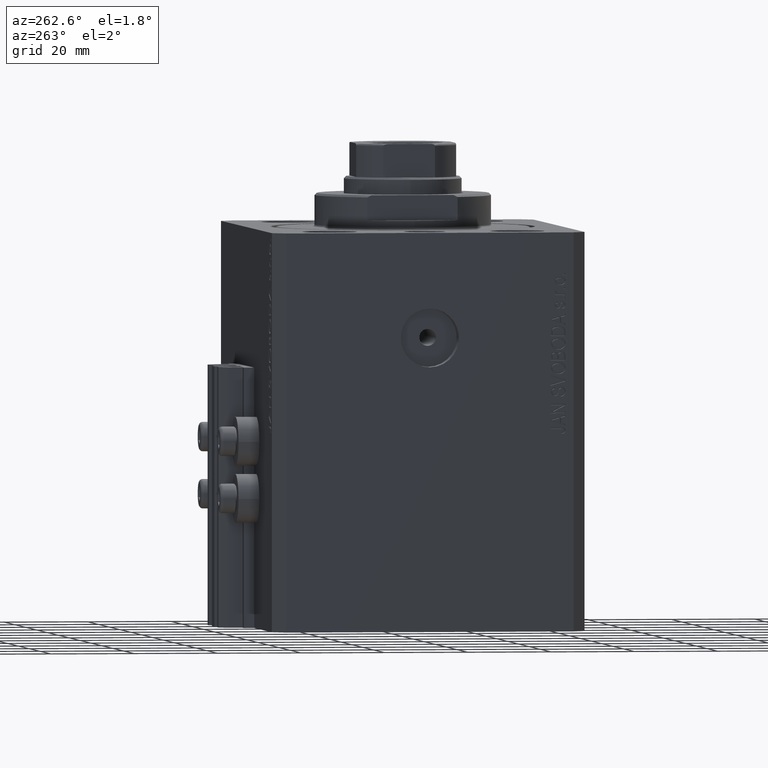
[diagram: clean part render]
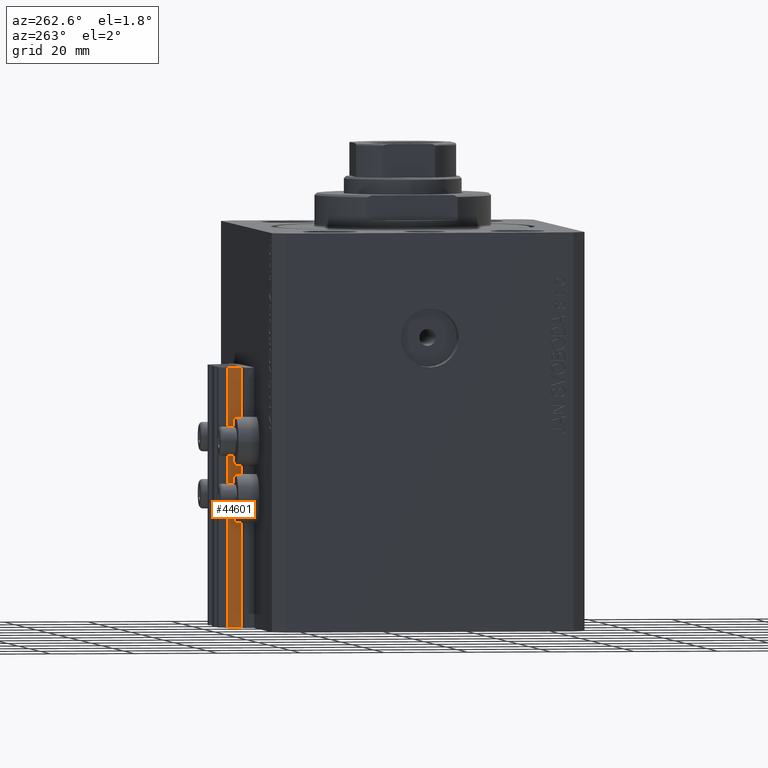
[diagram: same view with one face highlighted and labeled with its STEP entity id]
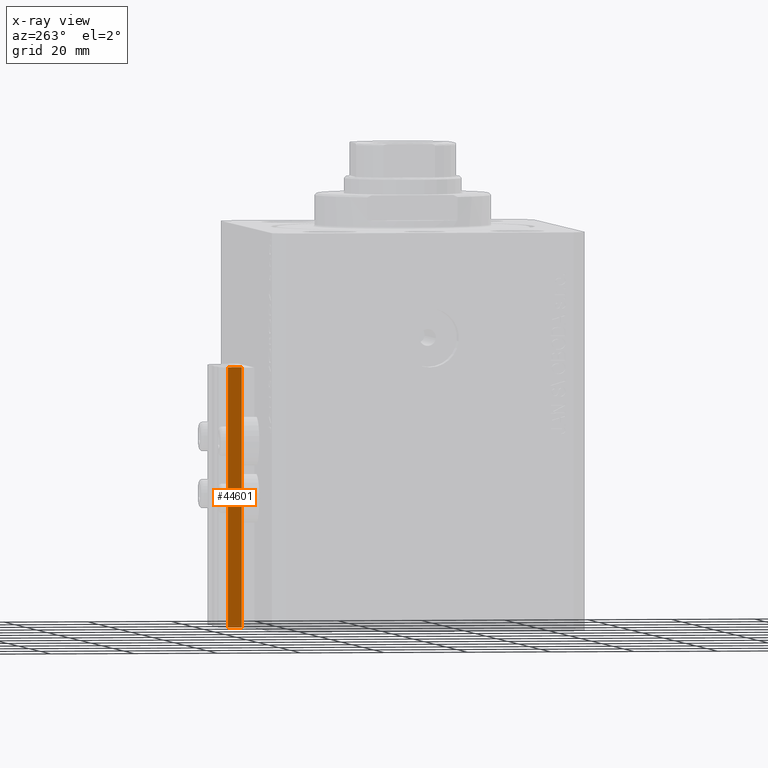
[diagram: x-ray of the same camera — body ghosted, the highlighted face saturated]
A machine part, auxiliary view. The second image highlights one B-rep face of the part: STEP entity #44601.
The next image is the same camera in x-ray: the body ghosted, the highlighted face saturated — about 0% of this face is hidden behind the body in this view.
In plain terms, the highlighted planar face has unit normal (-1, 0, 0).
Its self-contained STEP definition (entity closure, byte-faithful):
#2397 = ORIENTED_EDGE ( 'NONE', *, *, #35951, .T. ) ;
#4577 = ORIENTED_EDGE ( 'NONE', *, *, #9916, .F. ) ;
#6722 = PLANE ( 'NONE',  #6829 ) ;
#6829 = AXIS2_PLACEMENT_3D ( 'NONE', #32289, #17943, #32516 ) ;
#6960 = FACE_OUTER_BOUND ( 'NONE', #15665, .T. ) ;
#8473 = VERTEX_POINT ( 'NONE', #39111 ) ;
#9916 = EDGE_CURVE ( 'NONE', #11190, #8473, #14873, .T. ) ;
#10114 = CARTESIAN_POINT ( 'NONE',  ( -12.00000000000000000, 43.49999999999998579, -33.00000000000000000 ) ) ;
#10698 = ORIENTED_EDGE ( 'NONE', *, *, #46651, .F. ) ;
#11190 = VERTEX_POINT ( 'NONE', #40847 ) ;
#14873 = LINE ( 'NONE', #10114, #21356 ) ;
#15665 = EDGE_LOOP ( 'NONE', ( #4577, #10698, #2397, #19099 ) ) ;
#15835 = VECTOR ( 'NONE', #29586, 1000.000000000000000 ) ;
#17943 = DIRECTION ( 'NONE',  ( -1.000000000000000000, 0.000000000000000000, 0.000000000000000000 ) ) ;
#19099 = ORIENTED_EDGE ( 'NONE', *, *, #26879, .T. ) ;
#21356 = VECTOR ( 'NONE', #46886, 1000.000000000000000 ) ;
#21589 = VERTEX_POINT ( 'NONE', #25358 ) ;
#21717 = CARTESIAN_POINT ( 'NONE',  ( -12.00000000000000000, 40.19999999999998863, -95.00000000000000000 ) ) ;
#22352 = CARTESIAN_POINT ( 'NONE',  ( -12.00000000000000000, 43.49999999999998579, -95.00000000000000000 ) ) ;
#23069 = LINE ( 'NONE', #22352, #40452 ) ;
#25358 = CARTESIAN_POINT ( 'NONE',  ( -12.00000000000000000, 40.19999999999998863, -95.00000000000000000 ) ) ;
#25772 = LINE ( 'NONE', #21717, #42836 ) ;
#26879 = EDGE_CURVE ( 'NONE', #21589, #8473, #25772, .T. ) ;
#29586 = DIRECTION ( 'NONE',  ( 0.000000000000000000, -1.000000000000000000, 0.000000000000000000 ) ) ;
#31328 = VERTEX_POINT ( 'NONE', #34633 ) ;
#32289 = CARTESIAN_POINT ( 'NONE',  ( -12.00000000000000000, 43.49999999999998579, -95.00000000000000000 ) ) ;
#32516 = DIRECTION ( 'NONE',  ( 0.000000000000000000, 0.000000000000000000, 1.000000000000000000 ) ) ;
#32694 = LINE ( 'NONE', #32947, #15835 ) ;
#32709 = DIRECTION ( 'NONE',  ( 0.000000000000000000, 0.000000000000000000, 1.000000000000000000 ) ) ;
#32947 = CARTESIAN_POINT ( 'NONE',  ( -12.00000000000000000, 43.49999999999998579, -95.00000000000000000 ) ) ;
#34633 = CARTESIAN_POINT ( 'NONE',  ( -12.00000000000000000, 43.49999999999998579, -95.00000000000000000 ) ) ;
#35951 = EDGE_CURVE ( 'NONE', #31328, #21589, #32694, .T. ) ;
#37399 = DIRECTION ( 'NONE',  ( 0.000000000000000000, 0.000000000000000000, 1.000000000000000000 ) ) ;
#39111 = CARTESIAN_POINT ( 'NONE',  ( -12.00000000000000000, 40.19999999999998863, -33.00000000000000000 ) ) ;
#40452 = VECTOR ( 'NONE', #37399, 1000.000000000000000 ) ;
#40847 = CARTESIAN_POINT ( 'NONE',  ( -12.00000000000000000, 43.49999999999998579, -33.00000000000000000 ) ) ;
#42836 = VECTOR ( 'NONE', #32709, 1000.000000000000000 ) ;
#44601 = ADVANCED_FACE ( 'NONE', ( #6960 ), #6722, .T. ) ;
#46651 = EDGE_CURVE ( 'NONE', #31328, #11190, #23069, .T. ) ;
#46886 = DIRECTION ( 'NONE',  ( 0.000000000000000000, -1.000000000000000000, 0.000000000000000000 ) ) ;